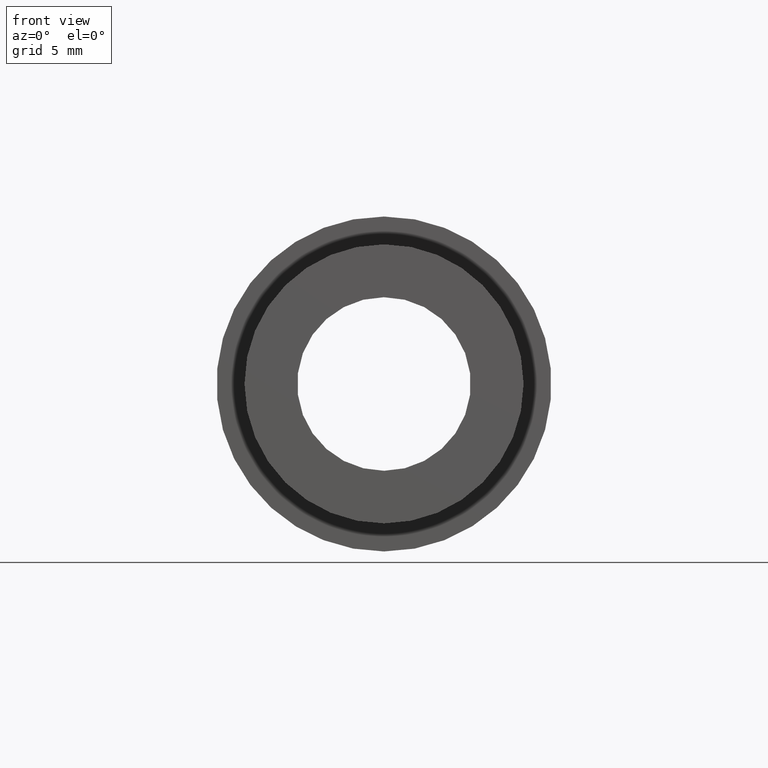
[diagram: clean part render]
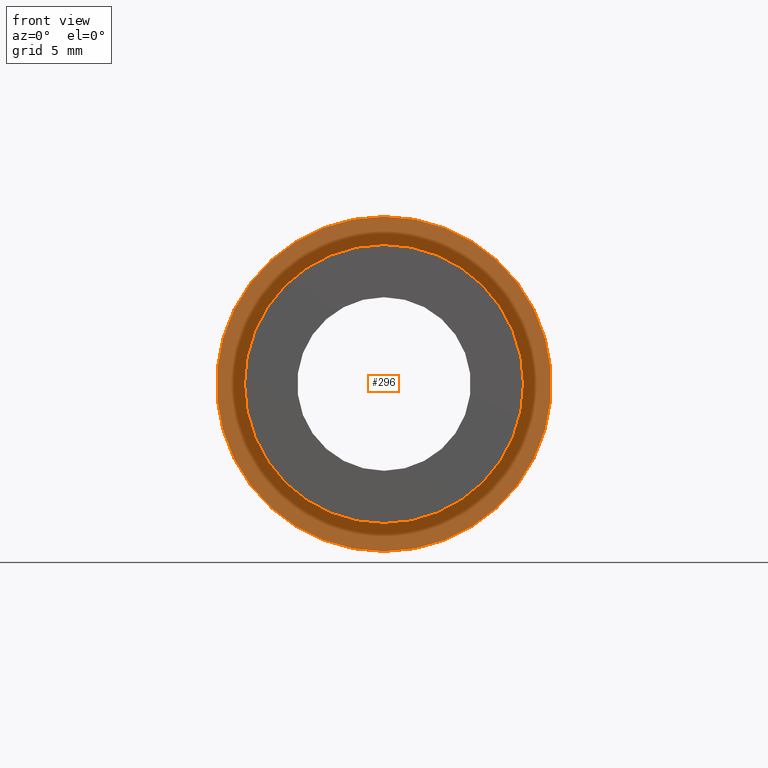
[diagram: same view with one face highlighted and labeled with its STEP entity id]
A machine part, front view. The second image highlights one B-rep face of the part: STEP entity #296.
In plain terms, the highlighted planar face has unit normal (0, 1, 0).
Its self-contained STEP definition (entity closure, byte-faithful):
#32 = CARTESIAN_POINT ( 'NONE',  ( 0.0000000000000000000, 0.2499999999999999700, 0.0000000000000000000 ) ) ;
#43 = DIRECTION ( 'NONE',  ( 0.0000000000000000000, 0.0000000000000000000, -1.000000000000000000 ) ) ;
#45 = DIRECTION ( 'NONE',  ( 0.0000000000000000000, 1.000000000000000000, 0.0000000000000000000 ) ) ;
#66 = CARTESIAN_POINT ( 'NONE',  ( 0.0000000000000000000, 0.2500000000000000000, -0.2999999999999999900 ) ) ;
#71 = DIRECTION ( 'NONE',  ( 0.0000000000000000000, 0.0000000000000000000, -1.000000000000000000 ) ) ;
#73 = CARTESIAN_POINT ( 'NONE',  ( 0.0000000000000000000, 0.2499999999999999700, -0.2500000000000000000 ) ) ;
#74 = CARTESIAN_POINT ( 'NONE',  ( 3.673940397442058900E-017, 0.2500000000000000000, 0.2999999999999999900 ) ) ;
#78 = CARTESIAN_POINT ( 'NONE',  ( -0.2500000000000000000, 0.2500000000000000000, 0.0000000000000000000 ) ) ;
#82 = DIRECTION ( 'NONE',  ( -0.0000000000000000000, -1.000000000000000000, -0.0000000000000000000 ) ) ;
#86 = DIRECTION ( 'NONE',  ( 0.0000000000000000000, 0.0000000000000000000, -1.000000000000000000 ) ) ;
#88 = CARTESIAN_POINT ( 'NONE',  ( 0.0000000000000000000, 0.2500000000000000000, 0.0000000000000000000 ) ) ;
#102 = DIRECTION ( 'NONE',  ( -0.0000000000000000000, -1.000000000000000000, -0.0000000000000000000 ) ) ;
#103 = DIRECTION ( 'NONE',  ( -0.0000000000000000000, -1.000000000000000000, -0.0000000000000000000 ) ) ;
#104 = DIRECTION ( 'NONE',  ( 0.0000000000000000000, -0.0000000000000000000, 1.000000000000000000 ) ) ;
#106 = PLANE ( 'NONE',  #151 ) ;
#117 = DIRECTION ( 'NONE',  ( 0.0000000000000000000, 0.0000000000000000000, -1.000000000000000000 ) ) ;
#123 = DIRECTION ( 'NONE',  ( -0.0000000000000000000, -1.000000000000000000, -0.0000000000000000000 ) ) ;
#125 = CARTESIAN_POINT ( 'NONE',  ( 3.061616997868383000E-017, 0.2499999999999999700, 0.2500000000000000000 ) ) ;
#131 = CARTESIAN_POINT ( 'NONE',  ( 0.0000000000000000000, 0.2499999999999999700, 0.0000000000000000000 ) ) ;
#141 = CARTESIAN_POINT ( 'NONE',  ( 0.0000000000000000000, 0.2500000000000000000, 0.0000000000000000000 ) ) ;
#146 = EDGE_LOOP ( 'NONE', ( #189, #252 ) ) ;
#151 = AXIS2_PLACEMENT_3D ( 'NONE', #78, #45, #104 ) ;
#177 = FACE_BOUND ( 'NONE', #285, .T. ) ;
#180 = FACE_OUTER_BOUND ( 'NONE', #146, .T. ) ;
#189 = ORIENTED_EDGE ( 'NONE', *, *, #280, .T. ) ;
#207 = AXIS2_PLACEMENT_3D ( 'NONE', #32, #103, #71 ) ;
#208 = AXIS2_PLACEMENT_3D ( 'NONE', #88, #123, #86 ) ;
#211 = AXIS2_PLACEMENT_3D ( 'NONE', #131, #82, #117 ) ;
#212 = AXIS2_PLACEMENT_3D ( 'NONE', #141, #102, #43 ) ;
#220 = CIRCLE ( 'NONE', #207, 0.2500000000000000000 ) ;
#221 = CIRCLE ( 'NONE', #208, 0.2999999999999999900 ) ;
#224 = CIRCLE ( 'NONE', #211, 0.2500000000000000000 ) ;
#226 = CIRCLE ( 'NONE', #212, 0.2999999999999999900 ) ;
#239 = ORIENTED_EDGE ( 'NONE', *, *, #278, .F. ) ;
#245 = VERTEX_POINT ( 'NONE', #125 ) ;
#246 = VERTEX_POINT ( 'NONE', #73 ) ;
#250 = VERTEX_POINT ( 'NONE', #66 ) ;
#251 = ORIENTED_EDGE ( 'NONE', *, *, #274, .F. ) ;
#252 = ORIENTED_EDGE ( 'NONE', *, *, #275, .T. ) ;
#274 = EDGE_CURVE ( 'NONE', #245, #246, #220, .T. ) ;
#275 = EDGE_CURVE ( 'NONE', #286, #250, #221, .T. ) ;
#278 = EDGE_CURVE ( 'NONE', #246, #245, #224, .T. ) ;
#280 = EDGE_CURVE ( 'NONE', #250, #286, #226, .T. ) ;
#285 = EDGE_LOOP ( 'NONE', ( #239, #251 ) ) ;
#286 = VERTEX_POINT ( 'NONE', #74 ) ;
#296 = ADVANCED_FACE ( 'NONE', ( #177, #180 ), #106, .F. ) ;